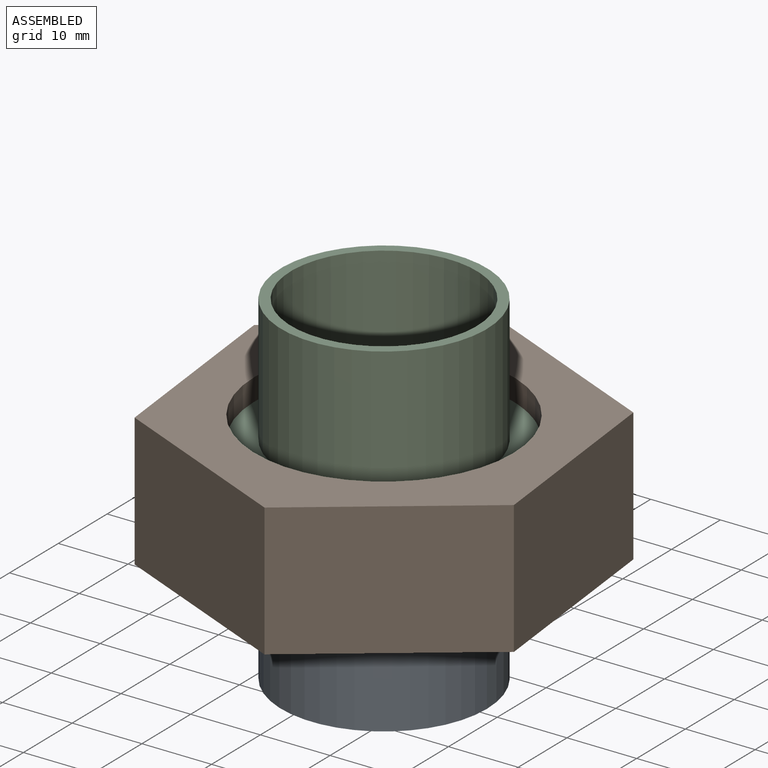
[diagram: assembled view]
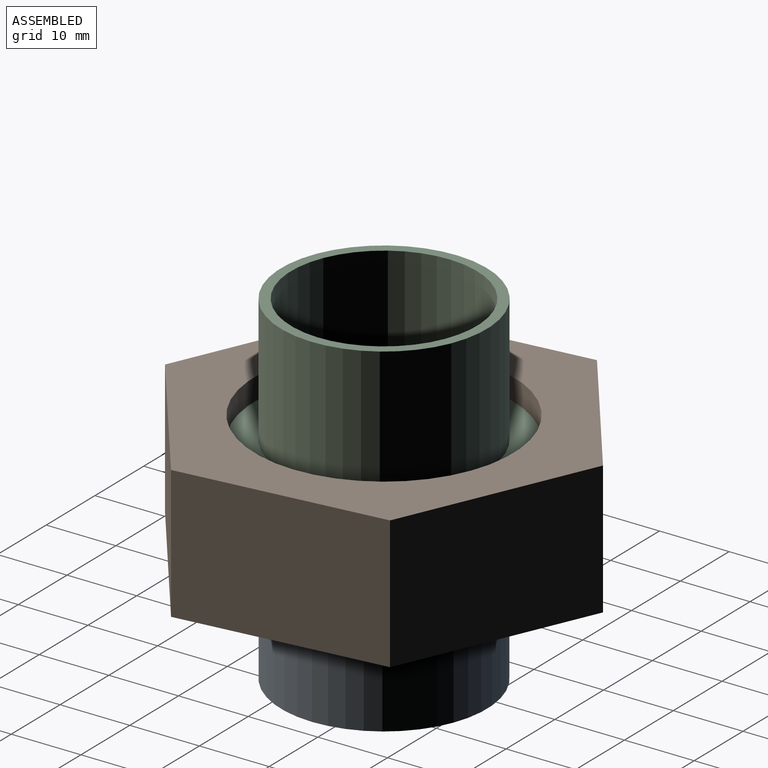
[diagram: assembled view, second angle]
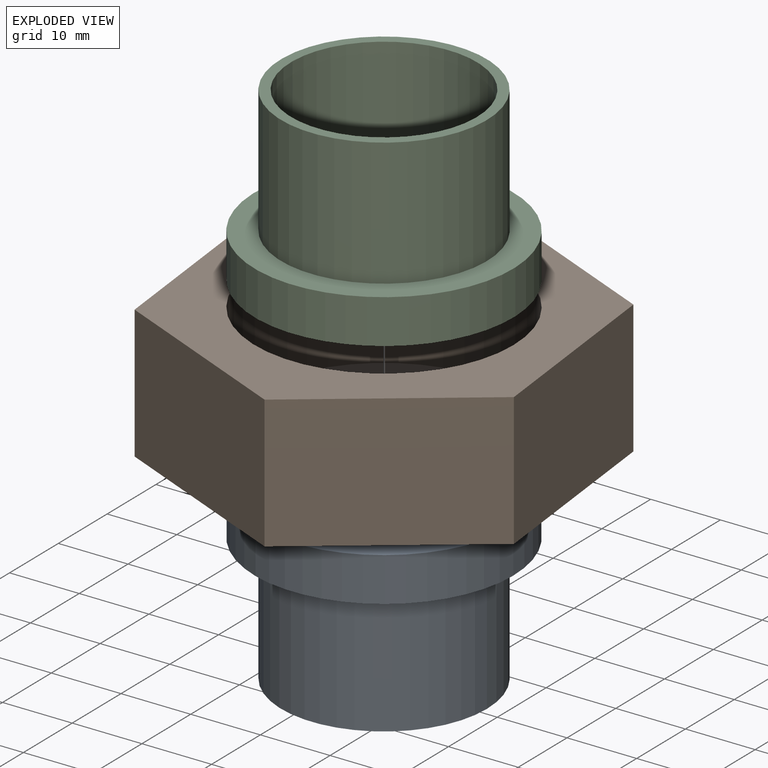
[diagram: exploded view]
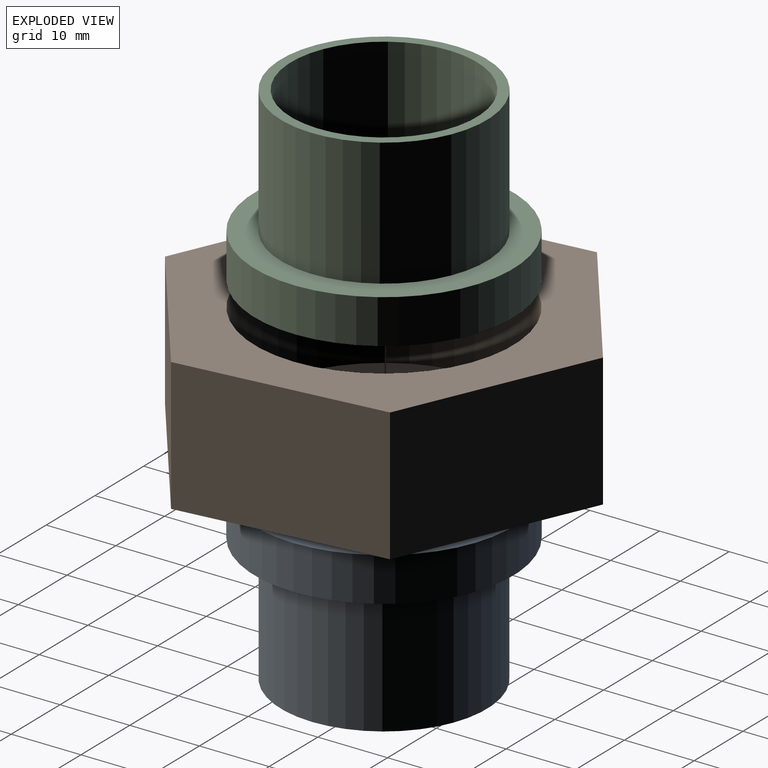
[diagram: exploded view, second angle]
ASSEMBLY  parts=3 mates=4
PART A: 8 faces, bbox 37.1x37.1x24.6 mm
  f0: cylinder r=13.33mm len=26.67mm, axis (0,0,-1), area 1532.3mm2, adj f2,f6
  f1: cylinder r=14.77mm len=29.54mm, axis (0,0,-1), area 1697.2mm2, adj f2,f3
  f2: plane 29.54x29.54mm, normal (0,0,1), area 126.7mm2, adj f0,f1
  f3: plane 37.08x37.08mm, normal (0,0,1), area 394.7mm2, adj f1,f4
  f4: cylinder r=18.54mm len=37.08mm, axis (0,0,-1), area 739.8mm2, adj f3,f5
  f5: plane 37.08x37.08mm, normal (0,0,-1), area 736.1mm2, adj f4,f7
  f6: plane 26.67x26.67mm, normal (0,0,1), area 214.6mm2, adj f0,f7
  f7: cylinder r=10.46mm len=20.93mm, axis (0,0,-1), area 417.5mm2, adj f5,f6
PART B: 11 faces, bbox 53.7x58.3x19.1 mm
  f0: plane 23.61x19.05mm, normal (0.59,-0.81,0), area 558.7mm2, adj f1,f6,f7,f9
  f1: plane 29.15x19.05mm, normal (0.99,0.11,0), area 558.7mm2, adj f0,f2,f7,f9
  f2: plane 26.87x19.05mm, normal (0.4,0.92,0), area 558.7mm2, adj f1,f3,f7,f9
  f3: plane 23.61x19.05mm, normal (-0.59,0.81,0), area 558.7mm2, adj f2,f4,f7,f9
  f4: plane 29.15x19.05mm, normal (-0.99,-0.11,0), area 558.7mm2, adj f3,f6,f7,f9
  f5: cylinder r=18.54mm len=37.08mm, axis (0,0,-1), area 1849.5mm2, adj f7,f8
  f6: plane 26.87x19.05mm, normal (-0.4,-0.92,0), area 558.7mm2, adj f0,f4,f7,f9
  f7: plane 58.3x53.75mm, normal (0,0,1), area 1154.8mm2, adj f0,f1,f2,f3,f4,f5,f6
  f8: plane 37.08x37.08mm, normal (0,0,1), area 394.7mm2, adj f5,f10
  f9: plane 58.3x53.75mm, normal (0,0,-1), area 1549.5mm2, adj f0,f1,f2,f3,f4,f6,f10
  f10: cylinder r=14.77mm len=29.54mm, axis (0,0,1), area 294.7mm2, adj f8,f9
PART C: same geometry as A
PLACE A rot(axis=(1,0,0),180deg) t=(178.03,7.91,-22.8)mm
PLACE B t=(119.58,-11.27,-29.15)mm
PLACE C rot(axis=(0,0,-1),61.2deg) t=(8.98,-277.7,-22.8)mm
MATE planar C.f0 <-> A.f0  axis (0,0,-1) through (-115.37,-11.27,-22.8)mm
MATE cylindrical B.f5 <-> A.f0  axis (0,0,1) through (-115.37,-11.27,-30.74)mm
MATE cylindrical A.f0 <-> C.f0  axis (0,0,1) through (-115.37,-11.27,-25.97)mm
MATE planar A.f0 <-> B.f5  axis (0,0,-1) through (-115.37,-11.27,-29.15)mm
